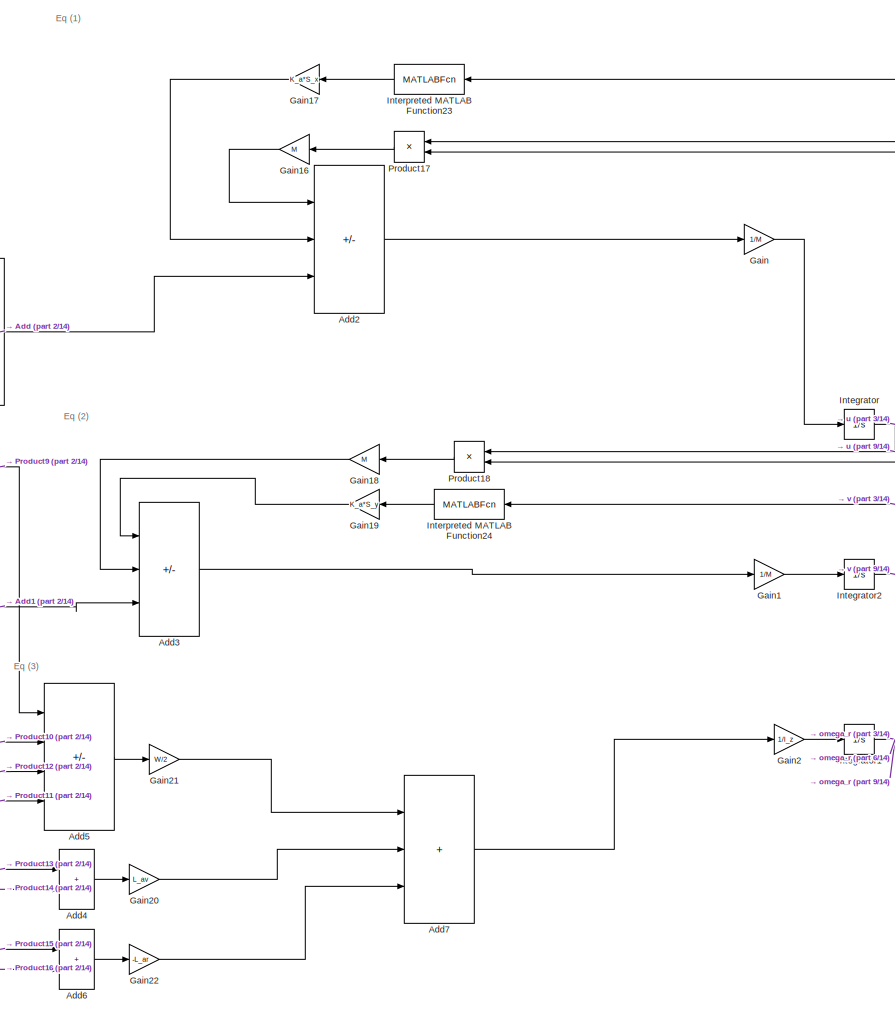
[diagram: root canvas - part 1/14, top center region]
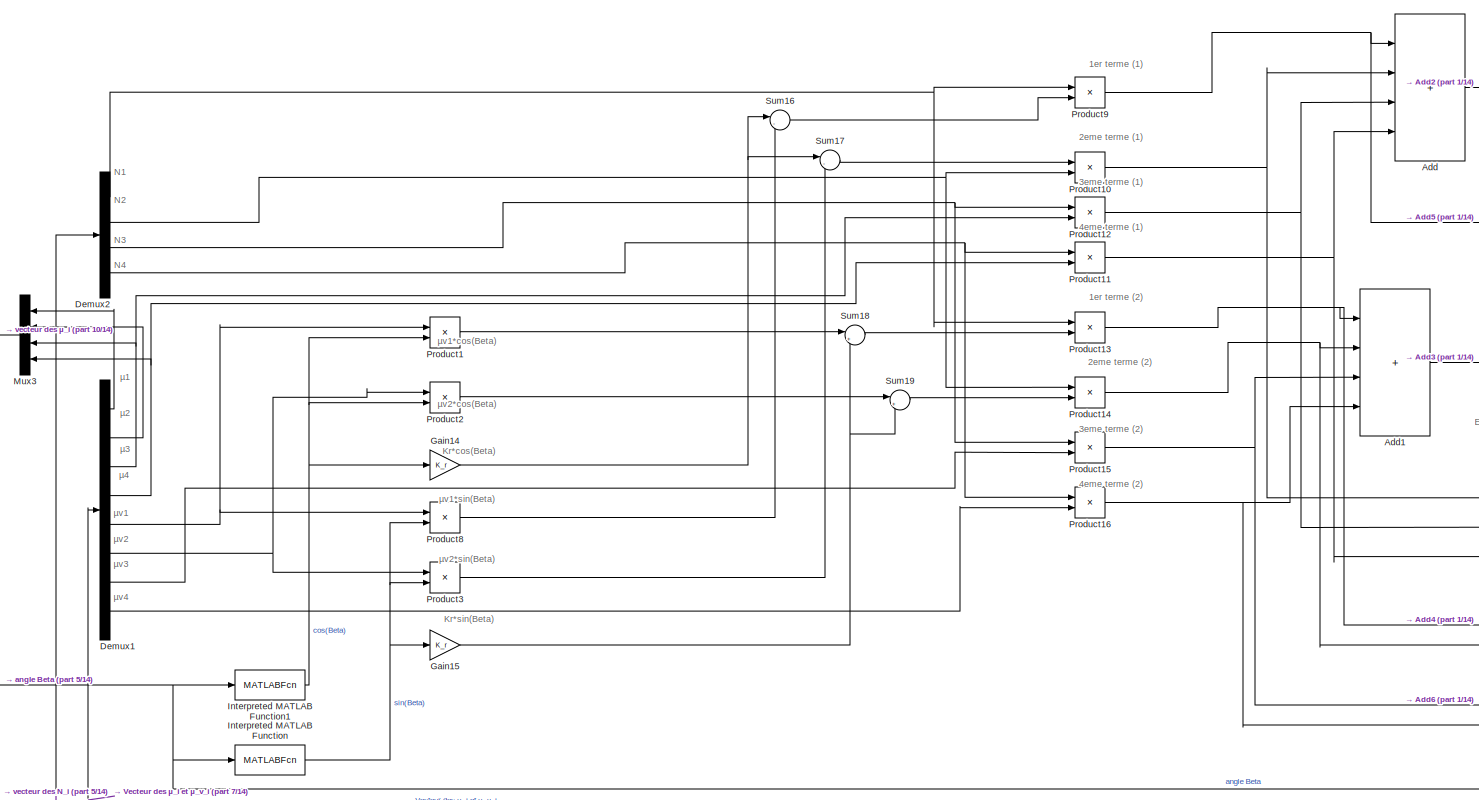
[diagram: root canvas - part 2/14, top left region]
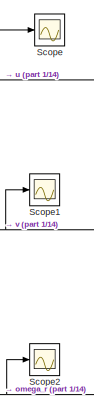
[diagram: root canvas - part 3/14, top right region]
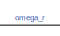
[diagram: root canvas - part 4/14, top right region]
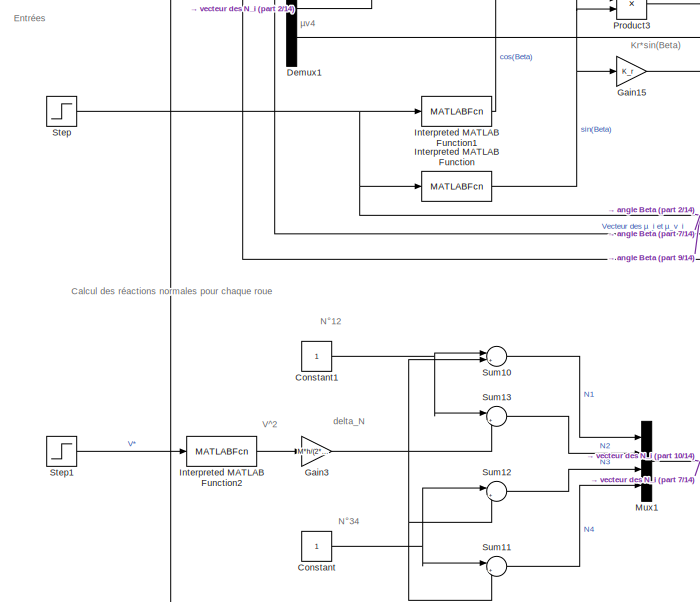
[diagram: root canvas - part 5/14, middle left region]
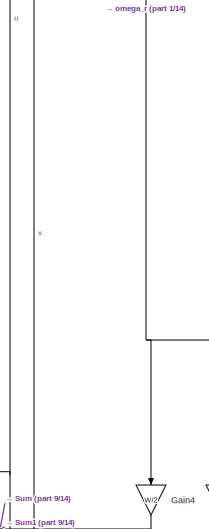
[diagram: root canvas - part 6/14, middle right region]
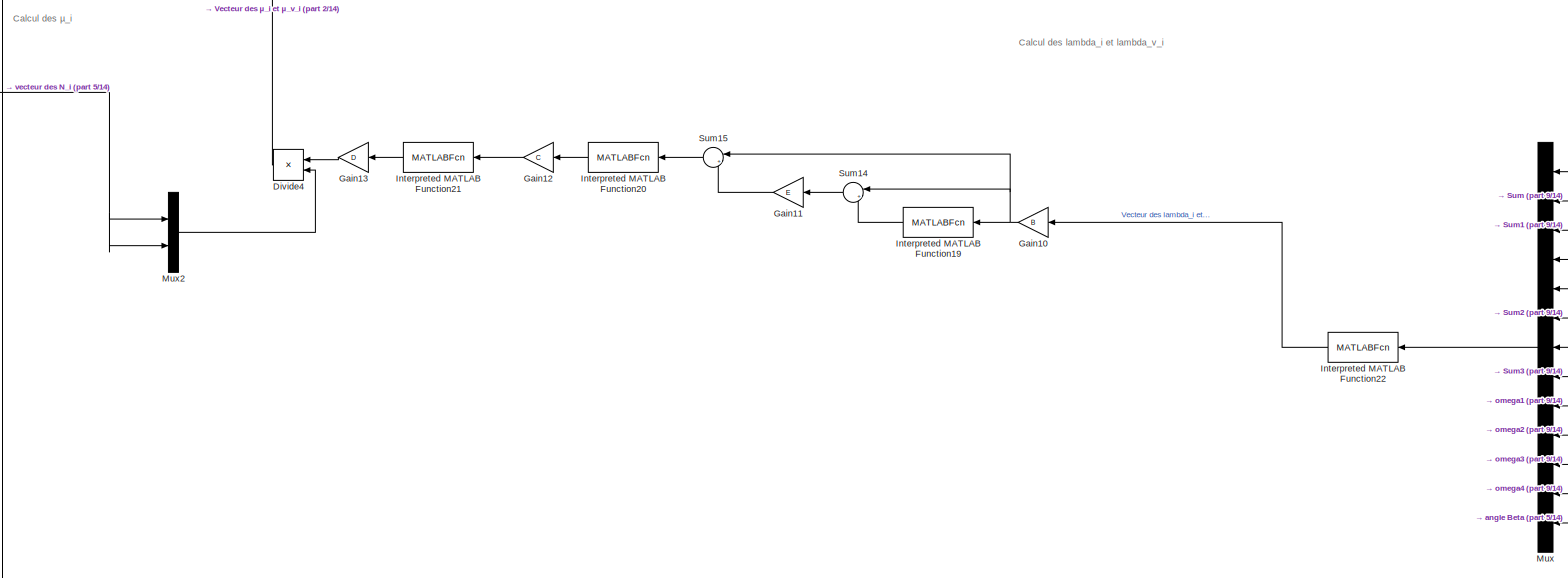
[diagram: root canvas - part 7/14, middle left region]
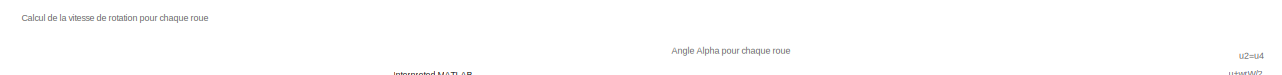
[diagram: root canvas - part 8/14, middle right region]
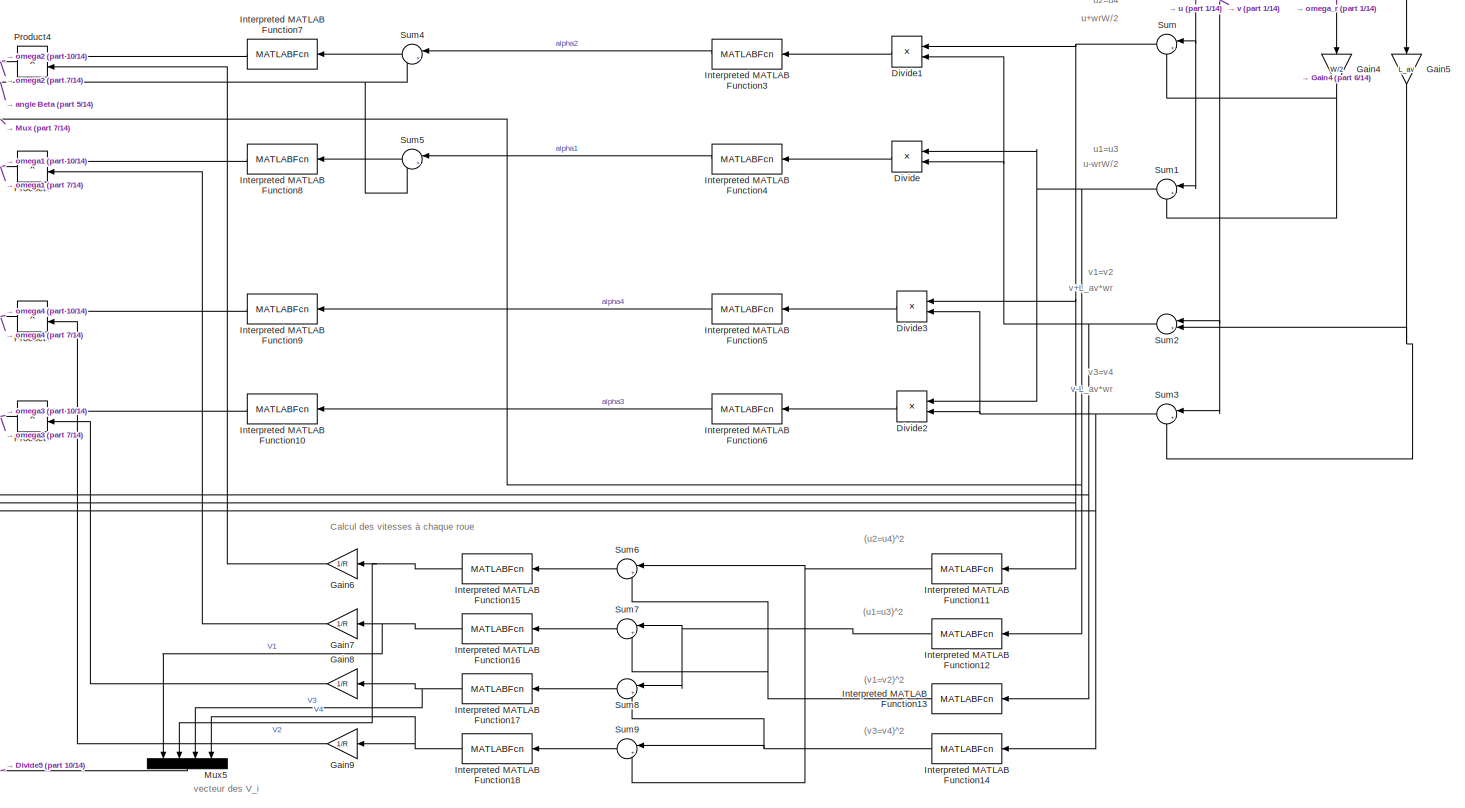
[diagram: root canvas - part 9/14, middle right region]
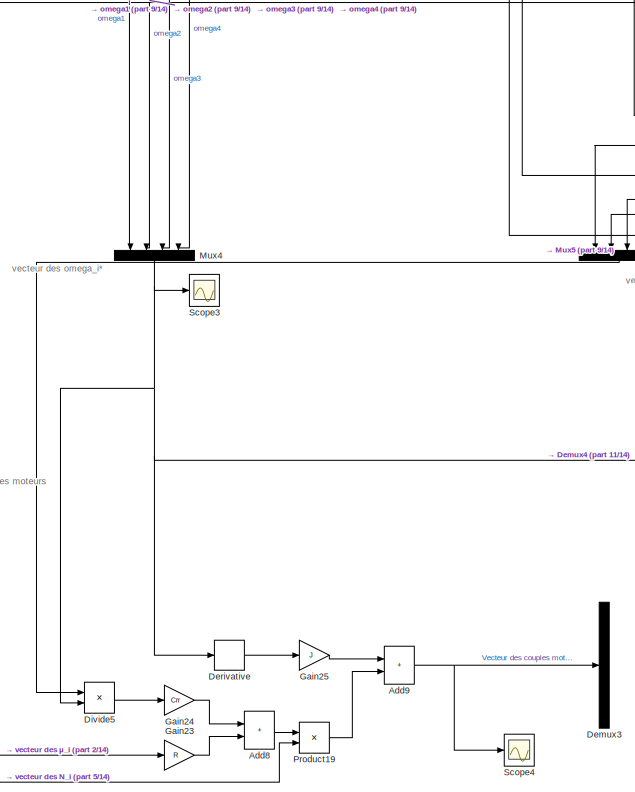
[diagram: root canvas - part 10/14, bottom center region]
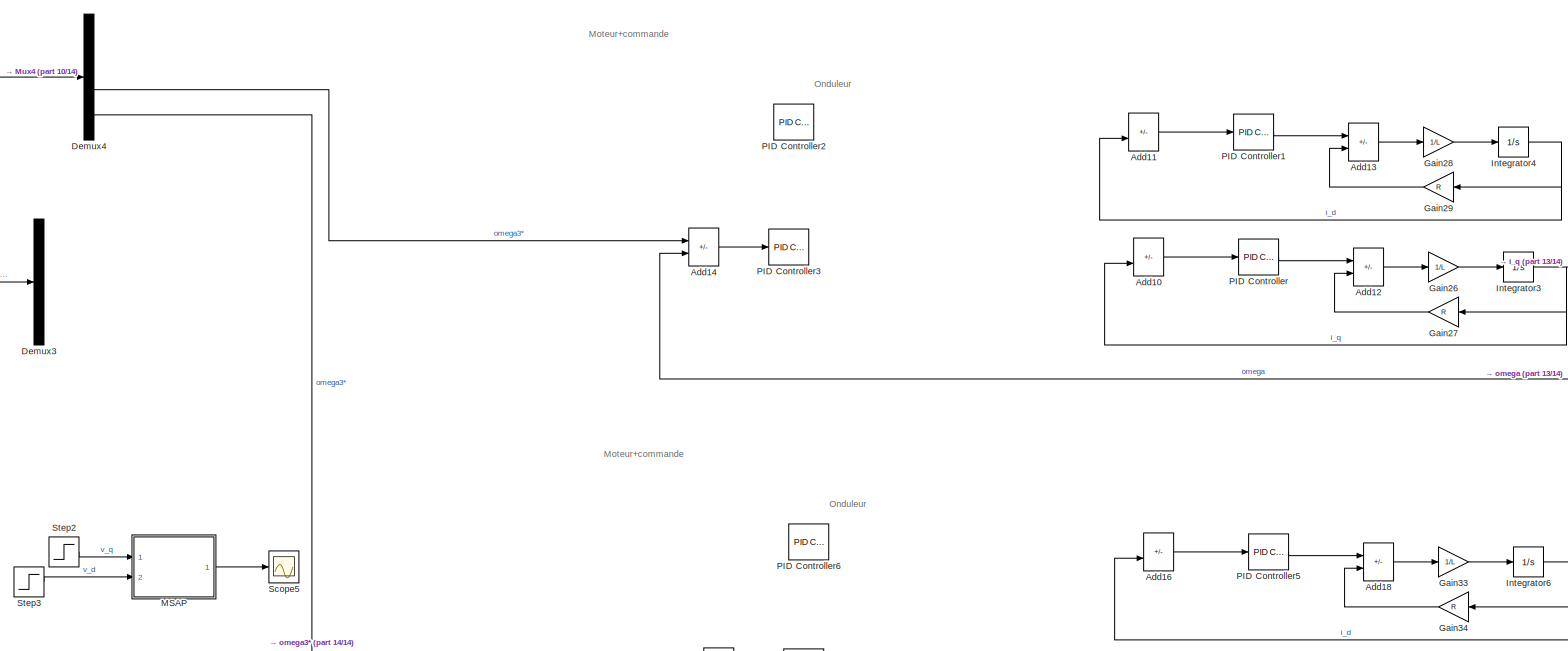
[diagram: root canvas - part 11/14, bottom right region]
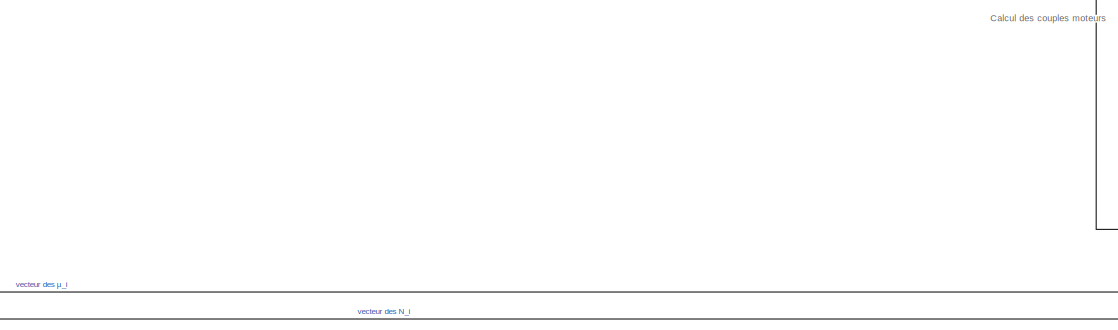
[diagram: root canvas - part 12/14, bottom center region]
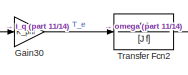
[diagram: root canvas - part 13/14, bottom right region]
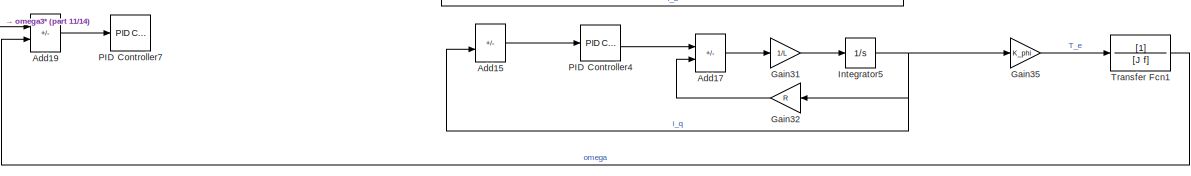
[diagram: root canvas - part 14/14, bottom right region]
MODEL slx_7fe973d7d760
KIND model
CONFIG AbsTol = auto
CONFIG EnableMultiTasking = off
CONFIG FixedStep = 0.001
CONFIG MaxStep = auto
CONFIG MinStep = auto
CONFIG RelTol = 1e-3
CONFIG SampleTimeConstraint = Unconstrained
CONFIG SolverName = FixedStepAuto
CONFIG StartTime = 0.0
CONFIG StopTime = 1.5
BLOCK [Sum] Add
  IconShape = rectangular
  Inputs = ++++
  Ports = [4, 1]
BLOCK [Sum] Add1
  IconShape = rectangular
  Inputs = ++++
  Ports = [4, 1]
BLOCK [Sum] Add10
  IconShape = rectangular
  Inputs = +-
  Ports = [2, 1]
BLOCK [Sum] Add11
  IconShape = rectangular
  Inputs = +-
  Ports = [2, 1]
BLOCK [Sum] Add12
  IconShape = rectangular
  Inputs = +-
  Ports = [2, 1]
BLOCK [Sum] Add13
  IconShape = rectangular
  Inputs = +-
  Ports = [2, 1]
BLOCK [Sum] Add14
  IconShape = rectangular
  Inputs = +-
  Ports = [2, 1]
BLOCK [Sum] Add15
  IconShape = rectangular
  Inputs = +-
  Ports = [2, 1]
BLOCK [Sum] Add16
  IconShape = rectangular
  Inputs = +-
  Ports = [2, 1]
BLOCK [Sum] Add17
  IconShape = rectangular
  Inputs = +-
  Ports = [2, 1]
BLOCK [Sum] Add18
  IconShape = rectangular
  Inputs = +-
  Ports = [2, 1]
BLOCK [Sum] Add19
  IconShape = rectangular
  Inputs = +-
  Ports = [2, 1]
BLOCK [Sum] Add2
  IconShape = rectangular
  Inputs = +-+
  Ports = [3, 1]
BLOCK [Sum] Add3
  IconShape = rectangular
  Inputs = --+
  Ports = [3, 1]
BLOCK [Sum] Add4
  IconShape = rectangular
  Ports = [2, 1]
BLOCK [Sum] Add5
  IconShape = rectangular
  Inputs = -+-+
  Ports = [4, 1]
BLOCK [Sum] Add6
  IconShape = rectangular
  Ports = [2, 1]
BLOCK [Sum] Add7
  IconShape = rectangular
  Inputs = +++
  Ports = [3, 1]
BLOCK [Sum] Add8
  IconShape = rectangular
  Ports = [2, 1]
BLOCK [Sum] Add9
  IconShape = rectangular
  Ports = [2, 1]
BLOCK [Constant] Constant
BLOCK [Constant] Constant1
BLOCK [Demux] Demux1
  Outputs = 8
  Ports = [1, 8]
BLOCK [Demux] Demux2
  Ports = [1, 4]
BLOCK [Demux] Demux3
  Ports = [1, 4]
BLOCK [Demux] Demux4
  Ports = [1, 4]
BLOCK [Derivative] Derivative
BLOCK [Product] Divide
  Inputs = */
  NameLocation = top
  Ports = [2, 1]
BLOCK [Product] Divide1
  Inputs = */
  NameLocation = top
  Ports = [2, 1]
BLOCK [Product] Divide2
  Inputs = */
  NameLocation = top
  Ports = [2, 1]
BLOCK [Product] Divide3
  Inputs = */
  NameLocation = top
  Ports = [2, 1]
BLOCK [Product] Divide4
  Inputs = */
  NameLocation = top
  Ports = [2, 1]
BLOCK [Product] Divide5
  Inputs = */
  Ports = [2, 1]
BLOCK [Gain] Gain
  Gain = 1/M
BLOCK [Gain] Gain1
  Gain = 1/M
BLOCK [Gain] Gain10
  Gain = B
  NameLocation = top
BLOCK [Gain] Gain11
  Gain = E
  NameLocation = top
BLOCK [Gain] Gain12
  Gain = C
  NameLocation = top
BLOCK [Gain] Gain13
  Gain = D
  NameLocation = top
BLOCK [Gain] Gain14
  Gain = K_r
BLOCK [Gain] Gain15
  Gain = K_r
BLOCK [Gain] Gain16
  Gain = M
  NameLocation = top
BLOCK [Gain] Gain17
  Gain = K_a*S_x
  NameLocation = top
BLOCK [Gain] Gain18
  Gain = M
  NameLocation = top
BLOCK [Gain] Gain19
  Gain = K_a*S_y
  NameLocation = top
BLOCK [Gain] Gain2
  Gain = 1/I_z
BLOCK [Gain] Gain20
  Gain = L_av
BLOCK [Gain] Gain21
  Gain = W/2
BLOCK [Gain] Gain22
  Gain = -L_ar
BLOCK [Gain] Gain23
  Gain = R
BLOCK [Gain] Gain24
  Gain = Crr
BLOCK [Gain] Gain25
  Gain = J
BLOCK [Gain] Gain26
  Gain = 1/L
BLOCK [Gain] Gain27
  Gain = R
  NameLocation = top
BLOCK [Gain] Gain28
  Gain = 1/L
BLOCK [Gain] Gain29
  Gain = R
  NameLocation = top
BLOCK [Gain] Gain3
  Gain = M*h/(2*R*W)
BLOCK [Gain] Gain30
  Gain = K_phi
BLOCK [Gain] Gain31
  Gain = 1/L
BLOCK [Gain] Gain32
  Gain = R
  NameLocation = top
BLOCK [Gain] Gain33
  Gain = 1/L
BLOCK [Gain] Gain34
  Gain = R
  NameLocation = top
BLOCK [Gain] Gain35
  Gain = K_phi
BLOCK [Gain] Gain4
  Gain = W/2
  NameLocation = left
BLOCK [Gain] Gain5
  Gain = L_av
  NameLocation = left
BLOCK [Gain] Gain6
  Gain = 1/R
  NameLocation = top
BLOCK [Gain] Gain7
  Gain = 1/R
  NameLocation = top
BLOCK [Gain] Gain8
  Gain = 1/R
  NameLocation = top
BLOCK [Gain] Gain9
  Gain = 1/R
  NameLocation = top
BLOCK [Integrator] Integrator
  InitialCondition = 0.001
  Ports = [1, 1]
BLOCK [Integrator] Integrator1
  InitialCondition = 0.001
  Ports = [1, 1]
BLOCK [Integrator] Integrator2
  InitialCondition = 0.001
  Ports = [1, 1]
BLOCK [Integrator] Integrator3
  Ports = [1, 1]
BLOCK [Integrator] Integrator4
  Ports = [1, 1]
BLOCK [Integrator] Integrator5
  Ports = [1, 1]
BLOCK [Integrator] Integrator6
  Ports = [1, 1]
BLOCK [MATLABFcn] Interpreted MATLAB Function
  Ports = [1, 1]
BLOCK [MATLABFcn] Interpreted MATLAB Function1
  MATLABFcn = cos
  Ports = [1, 1]
BLOCK [MATLABFcn] Interpreted MATLAB Function10
  MATLABFcn = cos
  NameLocation = top
  Ports = [1, 1]
BLOCK [MATLABFcn] Interpreted MATLAB Function11
  MATLABFcn = u^2
  NameLocation = top
  Ports = [1, 1]
BLOCK [MATLABFcn] Interpreted MATLAB Function12
  MATLABFcn = u^2
  NameLocation = top
  Ports = [1, 1]
BLOCK [MATLABFcn] Interpreted MATLAB Function13
  MATLABFcn = u^2
  NameLocation = top
  Ports = [1, 1]
BLOCK [MATLABFcn] Interpreted MATLAB Function14
  MATLABFcn = u^2
  NameLocation = top
  Ports = [1, 1]
BLOCK [MATLABFcn] Interpreted MATLAB Function15
  MATLABFcn = u^(1/2)
  NameLocation = top
  Ports = [1, 1]
BLOCK [MATLABFcn] Interpreted MATLAB Function16
  MATLABFcn = u^(1/2)
  NameLocation = top
  Ports = [1, 1]
BLOCK [MATLABFcn] Interpreted MATLAB Function17
  MATLABFcn = u^(1/2)
  NameLocation = top
  Ports = [1, 1]
BLOCK [MATLABFcn] Interpreted MATLAB Function18
  MATLABFcn = u^(1/2)
  NameLocation = top
  Ports = [1, 1]
BLOCK [MATLABFcn] Interpreted MATLAB Function19
  MATLABFcn = atan
  NameLocation = top
  Ports = [1, 1]
BLOCK [MATLABFcn] Interpreted MATLAB Function2
  MATLABFcn = u^2
  Ports = [1, 1]
BLOCK [MATLABFcn] Interpreted MATLAB Function20
  MATLABFcn = atan
  NameLocation = top
  Ports = [1, 1]
BLOCK [MATLABFcn] Interpreted MATLAB Function21
  MATLABFcn = cos
  NameLocation = top
  Ports = [1, 1]
BLOCK [MATLABFcn] Interpreted MATLAB Function22
  MATLABFcn = calcul_lambda
  NameLocation = top
  Ports = [1, 1]
BLOCK [MATLABFcn] Interpreted MATLAB Function23
  MATLABFcn = u^2
  NameLocation = top
  Ports = [1, 1]
BLOCK [MATLABFcn] Interpreted MATLAB Function24
  MATLABFcn = u^2
  NameLocation = top
  Ports = [1, 1]
BLOCK [MATLABFcn] Interpreted MATLAB Function3
  MATLABFcn = atan
  NameLocation = top
  Ports = [1, 1]
BLOCK [MATLABFcn] Interpreted MATLAB Function4
  MATLABFcn = atan(u)
  NameLocation = top
  Ports = [1, 1]
BLOCK [MATLABFcn] Interpreted MATLAB Function5
  MATLABFcn = atan
  NameLocation = top
  Ports = [1, 1]
BLOCK [MATLABFcn] Interpreted MATLAB Function6
  MATLABFcn = atan
  NameLocation = top
  Ports = [1, 1]
BLOCK [MATLABFcn] Interpreted MATLAB Function7
  MATLABFcn = cos
  NameLocation = top
  Ports = [1, 1]
BLOCK [MATLABFcn] Interpreted MATLAB Function8
  MATLABFcn = cos
  NameLocation = top
  Ports = [1, 1]
BLOCK [MATLABFcn] Interpreted MATLAB Function9
  MATLABFcn = cos
  NameLocation = top
  Ports = [1, 1]
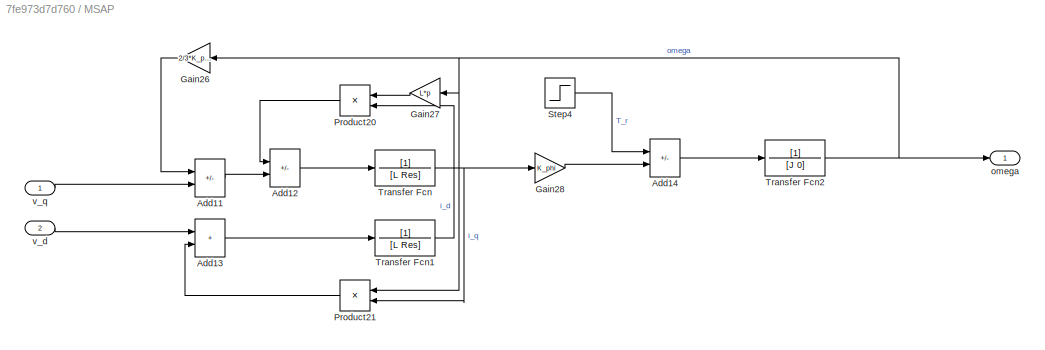
BLOCK [SubSystem] MSAP
  Ports = [2, 1]
  RequestExecContextInheritance = off
BLOCK [Sum] MSAP/Add11
  IconShape = rectangular
  Inputs = -+
  Ports = [2, 1]
BLOCK [Sum] MSAP/Add12
  IconShape = rectangular
  Inputs = -+
  Ports = [2, 1]
BLOCK [Sum] MSAP/Add13
  IconShape = rectangular
  Ports = [2, 1]
BLOCK [Sum] MSAP/Add14
  IconShape = rectangular
  Inputs = -+
  Ports = [2, 1]
BLOCK [Gain] MSAP/Gain26
  Gain = 2/3*K_phi
  NameLocation = top
BLOCK [Gain] MSAP/Gain27
  Gain = L*p
  NameLocation = top
BLOCK [Gain] MSAP/Gain28
  Gain = K_phi
BLOCK [Product] MSAP/Product20
  NameLocation = top
  Ports = [2, 1]
BLOCK [Product] MSAP/Product21
  NameLocation = top
  Ports = [2, 1]
BLOCK [Step] MSAP/Step4
  SampleTime = 0
  Time = 0
BLOCK [TransferFcn] MSAP/Transfer Fcn
  Denominator = [L Res]
BLOCK [TransferFcn] MSAP/Transfer Fcn1
  Denominator = [L Res]
BLOCK [TransferFcn] MSAP/Transfer Fcn2
  Denominator = [J 0]
BLOCK [Outport] MSAP/omega
BLOCK [Inport] MSAP/v_d
  Port = 2
BLOCK [Inport] MSAP/v_q
BLOCK [Mux] Mux
  DisplayOption = bar
  Inputs = 13
  NameLocation = top
  Ports = [13, 1]
BLOCK [Mux] Mux1
  DisplayOption = bar
  Ports = [4, 1]
BLOCK [Mux] Mux2
  DisplayOption = bar
  Inputs = 2
  Ports = [2, 1]
BLOCK [Mux] Mux3
  DisplayOption = bar
  NameLocation = top
  Ports = [4, 1]
BLOCK [Mux] Mux4
  DisplayOption = bar
  NameLocation = left
  Ports = [4, 1]
BLOCK [Mux] Mux5
  DisplayOption = bar
  NameLocation = left
  Ports = [4, 1]
BLOCK [Reference] PID Controller  REF=slpidlib/PID Controller
  Ports = [1, 1]
  SourceBlock = slpidlib/PID Controller
  SourceProductBaseCode = SL
  SourceType = PID 1dof
BLOCK [Reference] PID Controller1  REF=slpidlib/PID Controller
  Ports = [1, 1]
  SourceBlock = slpidlib/PID Controller
  SourceProductBaseCode = SL
  SourceType = PID 1dof
BLOCK [Reference] PID Controller2  REF=slpidlib/PID Controller
  Ports = [1, 1]
  SourceBlock = slpidlib/PID Controller
  SourceProductBaseCode = SL
  SourceType = PID 1dof
BLOCK [Reference] PID Controller3  REF=slpidlib/PID Controller
  Ports = [1, 1]
  SourceBlock = slpidlib/PID Controller
  SourceProductBaseCode = SL
  SourceType = PID 1dof
BLOCK [Reference] PID Controller4  REF=slpidlib/PID Controller
  Ports = [1, 1]
  SourceBlock = slpidlib/PID Controller
  SourceProductBaseCode = SL
  SourceType = PID 1dof
BLOCK [Reference] PID Controller5  REF=slpidlib/PID Controller
  Ports = [1, 1]
  SourceBlock = slpidlib/PID Controller
  SourceProductBaseCode = SL
  SourceType = PID 1dof
BLOCK [Reference] PID Controller6  REF=slpidlib/PID Controller
  Ports = [1, 1]
  SourceBlock = slpidlib/PID Controller
  SourceProductBaseCode = SL
  SourceType = PID 1dof
BLOCK [Reference] PID Controller7  REF=slpidlib/PID Controller
  Ports = [1, 1]
  SourceBlock = slpidlib/PID Controller
  SourceProductBaseCode = SL
  SourceType = PID 1dof
BLOCK [Product] Product1
  Ports = [2, 1]
BLOCK [Product] Product10
  Ports = [2, 1]
BLOCK [Product] Product11
  Ports = [2, 1]
BLOCK [Product] Product12
  Ports = [2, 1]
BLOCK [Product] Product13
  Ports = [2, 1]
BLOCK [Product] Product14
  Ports = [2, 1]
BLOCK [Product] Product15
  Ports = [2, 1]
BLOCK [Product] Product16
  Ports = [2, 1]
BLOCK [Product] Product17
  NameLocation = top
  Ports = [2, 1]
BLOCK [Product] Product18
  NameLocation = top
  Ports = [2, 1]
BLOCK [Product] Product19
  Ports = [2, 1]
BLOCK [Product] Product2
  Ports = [2, 1]
BLOCK [Product] Product3
  Ports = [2, 1]
BLOCK [Product] Product4
  NameLocation = top
  Ports = [2, 1]
BLOCK [Product] Product5
  NameLocation = top
  Ports = [2, 1]
BLOCK [Product] Product6
  NameLocation = top
  Ports = [2, 1]
BLOCK [Product] Product7
  NameLocation = top
  Ports = [2, 1]
BLOCK [Product] Product8
  Ports = [2, 1]
BLOCK [Product] Product9
  Ports = [2, 1]
BLOCK [Scope] Scope
  Floating = off
  NumInputPorts = 1
  Ports = [1]
  ScopeSpecificationString = Simulink.scopes.TimeScopeBlockCfg('CurrentConfiguration', extmgr.ConfigurationSet(extmgr.Configuration('Core','General UI',true),extmgr.Configuration('Core','Source UI',true),extmgr.Configuration('Sources','WiredSimulink',true),extmgr.Configuration('Visuals','Time Domain',true,'SerializedDisplays',{struct('MinYLimReal','-1.54394','MaxYLimReal','0.17266','YLabelReal','','MinYLimMag','0.00000','MaxY...<+1321ch>
BLOCK [Scope] Scope1
  Floating = off
  NumInputPorts = 1
  Ports = [1]
  ScopeSpecificationString = Simulink.scopes.TimeScopeBlockCfg('CurrentConfiguration', extmgr.ConfigurationSet(extmgr.Configuration('Core','General UI',true),extmgr.Configuration('Core','Source UI',true),extmgr.Configuration('Sources','WiredSimulink',true,'DataLoggingVariableName','ScopeData1'),extmgr.Configuration('Visuals','Time Domain',true,'SerializedDisplays',{struct('MinYLimReal','-0.22671','MaxYLimReal','2.05041','YLab...<+1408ch>
BLOCK [Scope] Scope2
  Floating = off
  NumInputPorts = 1
  Ports = [1]
  ScopeSpecificationString = Simulink.scopes.TimeScopeBlockCfg('CurrentConfiguration', extmgr.ConfigurationSet(extmgr.Configuration('Core','General UI',true),extmgr.Configuration('Core','Source UI',true),extmgr.Configuration('Sources','WiredSimulink',true,'DataLoggingVariableName','ScopeData2'),extmgr.Configuration('Visuals','Time Domain',true,'SerializedDisplays',{struct('MinYLimReal','-0.06857','MaxYLimReal','0.62712','YLab...<+1366ch>
BLOCK [Scope] Scope3
  Floating = off
  NumInputPorts = 1
  Ports = [1]
  ScopeSpecificationString = Simulink.scopes.TimeScopeBlockCfg('CurrentConfiguration', extmgr.ConfigurationSet(extmgr.Configuration('Core','General UI',true),extmgr.Configuration('Core','Source UI',true),extmgr.Configuration('Sources','WiredSimulink',true,'DataLoggingVariableName','ScopeData3'),extmgr.Configuration('Visuals','Time Domain',true,'SerializedDisplays',{struct('MinYLimReal','-0.6278','MaxYLimReal','2.36181','YLabe...<+1527ch>
BLOCK [Scope] Scope4
  Floating = off
  NumInputPorts = 1
  Ports = [1]
  ScopeSpecificationString = Simulink.scopes.TimeScopeBlockCfg('CurrentConfiguration', extmgr.ConfigurationSet(extmgr.Configuration('Core','General UI',true),extmgr.Configuration('Core','Source UI',true),extmgr.Configuration('Sources','WiredSimulink',true,'DataLoggingVariableName','ScopeData1'),extmgr.Configuration('Visuals','Time Domain',true,'SerializedDisplays',{struct('MinYLimReal','0.55559','MaxYLimReal','2.06421','YLabe...<+1623ch>
BLOCK [Scope] Scope5
  Floating = off
  NumInputPorts = 1
  Ports = [1]
  ScopeSpecificationString = Simulink.scopes.TimeScopeBlockCfg('CurrentConfiguration', extmgr.ConfigurationSet(extmgr.Configuration('Core','General UI',true),extmgr.Configuration('Core','Source UI',true),extmgr.Configuration('Sources','WiredSimulink',true,'DataLoggingVariableName','ScopeData2'),extmgr.Configuration('Visuals','Time Domain',true,'SerializedDisplays',{struct('MinYLimReal','0.55559','MaxYLimReal','2.06421','YLabe...<+1623ch>
BLOCK [Step] Step
  After = 0.2
  Before = 0.1
  SampleTime = 0
  Time = 0
BLOCK [Step] Step1
  SampleTime = 0
  Time = 0
BLOCK [Step] Step2
  SampleTime = 0
  Time = 0
BLOCK [Step] Step3
  SampleTime = 0
  Time = 0
BLOCK [Sum] Sum
  Inputs = |++
  NameLocation = top
  Ports = [2, 1]
BLOCK [Sum] Sum1
  Inputs = |+-
  NameLocation = top
  Ports = [2, 1]
BLOCK [Sum] Sum10
  Inputs = |++
  Ports = [2, 1]
BLOCK [Sum] Sum11
  Inputs = |++
  Ports = [2, 1]
BLOCK [Sum] Sum12
  Inputs = |+-
  Ports = [2, 1]
BLOCK [Sum] Sum13
  Inputs = |+-
  Ports = [2, 1]
BLOCK [Sum] Sum14
  Inputs = |+-
  NameLocation = top
  Ports = [2, 1]
BLOCK [Sum] Sum15
  Inputs = |+-
  NameLocation = top
  Ports = [2, 1]
BLOCK [Sum] Sum16
  Inputs = |--
  Ports = [2, 1]
BLOCK [Sum] Sum17
  Inputs = |--
  Ports = [2, 1]
BLOCK [Sum] Sum18
  Inputs = |+-
  Ports = [2, 1]
BLOCK [Sum] Sum19
  Inputs = |+-
  Ports = [2, 1]
BLOCK [Sum] Sum2
  Inputs = |++
  NameLocation = top
  Ports = [2, 1]
BLOCK [Sum] Sum3
  Inputs = |+-
  NameLocation = top
  Ports = [2, 1]
BLOCK [Sum] Sum4
  Inputs = |+-
  NameLocation = top
  Ports = [2, 1]
BLOCK [Sum] Sum5
  Inputs = |+-
  NameLocation = top
  Ports = [2, 1]
BLOCK [Sum] Sum6
  Inputs = |++
  NameLocation = top
  Ports = [2, 1]
BLOCK [Sum] Sum7
  Inputs = |++
  NameLocation = top
  Ports = [2, 1]
BLOCK [Sum] Sum8
  Inputs = |++
  NameLocation = top
  Ports = [2, 1]
BLOCK [Sum] Sum9
  Inputs = |++
  NameLocation = top
  Ports = [2, 1]
BLOCK [TransferFcn] Transfer Fcn1
  Denominator = [J f]
BLOCK [TransferFcn] Transfer Fcn2
  Denominator = [J f]
ANNOTATION (root): (u1=u3)^2
ANNOTATION (root): (u2=u4)^2
ANNOTATION (root): (v1=v2)^2
ANNOTATION (root): (v3=v4)^2
ANNOTATION (root): 1er terme (1)
ANNOTATION (root): 1er terme (2)
ANNOTATION (root): 2eme terme (1)
ANNOTATION (root): 2eme terme (2)
ANNOTATION (root): 3eme terme (1)
ANNOTATION (root): 3eme terme (2)
ANNOTATION (root): 4eme terme (1)
ANNOTATION (root): 4eme terme (2)
ANNOTATION (root): Angle Alpha pour chaque roue
ANNOTATION (root): Calcul de la vitesse de rotation pour chaque roue
ANNOTATION (root): Calcul des couples moteurs
ANNOTATION (root): Calcul des lambda_i et lambda_v_i
ANNOTATION (root): Calcul des réactions normales pour chaque roue
ANNOTATION (root): Calcul des vitesses à chaque roue
ANNOTATION (root): Calcul des µ_i
ANNOTATION (root): Entrées
ANNOTATION (root): Eq (1)
ANNOTATION (root): Eq (2)
ANNOTATION (root): Eq (3)
ANNOTATION (root): Kr*cos(Beta)
ANNOTATION (root): Kr*sin(Beta)
ANNOTATION (root): Moteur+commande
ANNOTATION (root): N1
ANNOTATION (root): N2
ANNOTATION (root): N3
ANNOTATION (root): N4
ANNOTATION (root): N°12
ANNOTATION (root): N°34
ANNOTATION (root): Onduleur
ANNOTATION (root): V^2
ANNOTATION (root): delta_N
ANNOTATION (root): u+wrW/2
ANNOTATION (root): u-wrW/2
ANNOTATION (root): u1=u3
ANNOTATION (root): u2=u4
ANNOTATION (root): v+L_av*wr
ANNOTATION (root): v-L_av*wr
ANNOTATION (root): v1=v2
ANNOTATION (root): v3=v4
ANNOTATION (root): vecteur des V_i
ANNOTATION (root): vecteur des omega_i*
ANNOTATION (root): µ1
ANNOTATION (root): µ2
ANNOTATION (root): µ3
ANNOTATION (root): µ4
ANNOTATION (root): µv1
ANNOTATION (root): µv1*cos(Beta)
ANNOTATION (root): µv1*sin(Beta)
ANNOTATION (root): µv2
ANNOTATION (root): µv2*cos(Beta)
ANNOTATION (root): µv2*sin(Beta)
ANNOTATION (root): µv3
ANNOTATION (root): µv4
LINE Add10:1 -> PID Controller:1
LINE Add11:1 -> PID Controller1:1
LINE Add12:1 -> Gain26:1
LINE Add13:1 -> Gain28:1
LINE Add14:1 -> PID Controller3:1
LINE Add15:1 -> PID Controller4:1
LINE Add16:1 -> PID Controller5:1
LINE Add17:1 -> Gain31:1
LINE Add18:1 -> Gain33:1
LINE Add19:1 -> PID Controller7:1
LINE Add1:1 -> Add3:3
LINE Add2:1 -> Gain:1
LINE Add3:1 -> Gain1:1
LINE Add4:1 -> Gain20:1
LINE Add5:1 -> Gain21:1
LINE Add6:1 -> Gain22:1
LINE Add7:1 -> Gain2:1
LINE Add8:1 -> Product19:1
NET Add9:1 -> Demux3:1, Scope4:1
LINE Add:1 -> Add2:3
NET Constant1:1 -> Sum10:1, Sum13:1
NET Constant:1 -> Sum11:1, Sum12:1
LINE Demux1:1 -> Mux3:1
LINE Demux1:2 -> Mux3:2
NET Demux1:3 -> Mux3:3, Product12:2
NET Demux1:4 -> Mux3:4, Product11:2
NET Demux1:5 -> Product1:1, Product8:1
NET Demux1:6 -> Product2:1, Product3:1
LINE Demux1:7 -> Product15:2
LINE Demux1:8 -> Product16:2
NET Demux2:1 -> Product13:1, Product9:1
NET Demux2:2 -> Product10:2, Product14:1
NET Demux2:3 -> Product12:1, Product15:1
NET Demux2:4 -> Product11:1, Product16:1
LINE Demux4:3 -> Add14:1
LINE Demux4:4 -> Add19:1
LINE Derivative:1 -> Gain25:1
LINE Divide1:1 -> Interpreted MATLAB Function3:1
LINE Divide2:1 -> Interpreted MATLAB Function6:1
LINE Divide3:1 -> Interpreted MATLAB Function5:1
LINE Divide4:1 -> Demux1:1
LINE Divide5:1 -> Gain24:1
LINE Divide:1 -> Interpreted MATLAB Function4:1
NET Gain10:1 -> Interpreted MATLAB Function19:1, Sum14:1, Sum15:1
LINE Gain11:1 -> Sum15:2
LINE Gain12:1 -> Interpreted MATLAB Function21:1
LINE Gain13:1 -> Divide4:1
NET Gain14:1 -> Sum16:1, Sum17:1
NET Gain15:1 -> Sum18:2, Sum19:2
LINE Gain16:1 -> Add2:1
LINE Gain17:1 -> Add2:2
LINE Gain18:1 -> Add3:2
LINE Gain19:1 -> Add3:1
LINE Gain1:1 -> Integrator2:1
LINE Gain20:1 -> Add7:2
LINE Gain21:1 -> Add7:1
LINE Gain22:1 -> Add7:3
LINE Gain23:1 -> Add8:2
LINE Gain24:1 -> Add8:1
LINE Gain25:1 -> Add9:1
LINE Gain26:1 -> Integrator3:1
LINE Gain27:1 -> Add12:2
LINE Gain28:1 -> Integrator4:1
LINE Gain29:1 -> Add13:2
LINE Gain2:1 -> Integrator1:1
LINE Gain30:1 -> Transfer Fcn2:1
LINE Gain31:1 -> Integrator5:1
LINE Gain32:1 -> Add17:2
LINE Gain33:1 -> Integrator6:1
LINE Gain34:1 -> Add18:2
LINE Gain35:1 -> Transfer Fcn1:1
NET Gain3:1 -> Sum10:2, Sum11:2, Sum12:2, Sum13:2
NET Gain4:1 -> Sum1:2, Sum:2
NET Gain5:1 -> Sum2:2, Sum3:2
LINE Gain6:1 -> Product4:2
LINE Gain7:1 -> Product5:2
LINE Gain8:1 -> Product7:2
LINE Gain9:1 -> Product6:2
LINE Gain:1 -> Integrator:1
NET Integrator1:1 -> Gain4:1, Gain5:1, Product17:2, Product18:2, Scope2:1
NET Integrator2:1 -> Interpreted MATLAB Function24:1, Product17:1, Scope1:1, Sum2:1, Sum3:1
NET Integrator3:1 -> Add10:2, Gain27:1, Gain30:1
NET Integrator4:1 -> Add11:2, Gain29:1
NET Integrator5:1 -> Add15:2, Gain32:1, Gain35:1
NET Integrator6:1 -> Add16:2, Gain34:1
NET Integrator:1 -> Interpreted MATLAB Function23:1, Product18:1, Scope:1, Sum1:1, Sum:1
LINE Interpreted MATLAB Function10:1 -> Product7:1
NET Interpreted MATLAB Function11:1 -> Sum6:1, Sum9:2
NET Interpreted MATLAB Function12:1 -> Sum7:1, Sum8:1
NET Interpreted MATLAB Function13:1 -> Sum6:2, Sum7:2
NET Interpreted MATLAB Function14:1 -> Sum8:2, Sum9:1
NET Interpreted MATLAB Function15:1 -> Gain6:1, Mux5:2
NET Interpreted MATLAB Function16:1 -> Gain7:1, Mux5:1
NET Interpreted MATLAB Function17:1 -> Gain8:1, Mux5:3
NET Interpreted MATLAB Function18:1 -> Gain9:1, Mux5:4
LINE Interpreted MATLAB Function19:1 -> Sum14:2
NET Interpreted MATLAB Function1:1 -> Gain14:1, Product1:2, Product2:2
LINE Interpreted MATLAB Function20:1 -> Gain12:1
LINE Interpreted MATLAB Function21:1 -> Gain13:1
LINE Interpreted MATLAB Function22:1 -> Gain10:1
LINE Interpreted MATLAB Function23:1 -> Gain17:1
LINE Interpreted MATLAB Function24:1 -> Gain19:1
LINE Interpreted MATLAB Function2:1 -> Gain3:1
LINE Interpreted MATLAB Function3:1 -> Sum4:1
LINE Interpreted MATLAB Function4:1 -> Sum5:1
LINE Interpreted MATLAB Function5:1 -> Interpreted MATLAB Function9:1
LINE Interpreted MATLAB Function6:1 -> Interpreted MATLAB Function10:1
LINE Interpreted MATLAB Function7:1 -> Product4:1
LINE Interpreted MATLAB Function8:1 -> Product5:1
LINE Interpreted MATLAB Function9:1 -> Product6:1
NET Interpreted MATLAB Function:1 -> Gain15:1, Product3:2, Product8:2
LINE MSAP/Add11:1 -> MSAP/Add12:2
LINE MSAP/Add12:1 -> MSAP/Transfer Fcn:1
LINE MSAP/Add13:1 -> MSAP/Transfer Fcn1:1
LINE MSAP/Add14:1 -> MSAP/Transfer Fcn2:1
LINE MSAP/Gain26:1 -> MSAP/Add11:1
LINE MSAP/Gain27:1 -> MSAP/Product20:1
LINE MSAP/Gain28:1 -> MSAP/Add14:2
LINE MSAP/Product20:1 -> MSAP/Add12:1
LINE MSAP/Product21:1 -> MSAP/Add13:2
LINE MSAP/Step4:1 -> MSAP/Add14:1
LINE MSAP/Transfer Fcn1:1 -> MSAP/Product20:2
NET MSAP/Transfer Fcn2:1 -> MSAP/Gain26:1, MSAP/Gain27:1, MSAP/Product21:1, MSAP/omega:1
NET MSAP/Transfer Fcn:1 -> MSAP/Gain28:1, MSAP/Product21:2
LINE MSAP/v_d:1 -> MSAP/Add13:1
LINE MSAP/v_q:1 -> MSAP/Add11:2
LINE MSAP:1 -> Scope5:1
NET Mux1:1 -> Demux2:1, Mux2:1, Mux2:2, Product19:2
LINE Mux2:1 -> Divide4:2
LINE Mux3:1 -> Gain23:1
NET Mux4:1 -> Demux4:1, Derivative:1, Divide5:2, Scope3:1
LINE Mux5:1 -> Divide5:1
LINE Mux:1 -> Interpreted MATLAB Function22:1
LINE PID Controller1:1 -> Add13:1
LINE PID Controller4:1 -> Add17:1
LINE PID Controller5:1 -> Add18:1
LINE PID Controller:1 -> Add12:1
NET Product10:1 -> Add5:2, Add:2
NET Product11:1 -> Add5:4, Add:4
NET Product12:1 -> Add5:3, Add:3
NET Product13:1 -> Add1:1, Add4:1
NET Product14:1 -> Add1:2, Add4:2
NET Product15:1 -> Add1:3, Add6:1
NET Product16:1 -> Add1:4, Add6:2
LINE Product17:1 -> Gain16:1
LINE Product18:1 -> Gain18:1
LINE Product19:1 -> Add9:2
LINE Product1:1 -> Sum18:1
LINE Product2:1 -> Sum19:1
LINE Product3:1 -> Sum17:2
NET Product4:1 -> Mux4:2, Mux:10
NET Product5:1 -> Mux4:1, Mux:9
NET Product6:1 -> Mux4:4, Mux:12
NET Product7:1 -> Mux4:3, Mux:11
LINE Product8:1 -> Sum16:2
NET Product9:1 -> Add5:1, Add:1
LINE Step1:1 -> Interpreted MATLAB Function2:1
LINE Step2:1 -> MSAP:1
LINE Step3:1 -> MSAP:2
NET Step:1 -> Interpreted MATLAB Function1:1, Interpreted MATLAB Function:1, Mux:13, Sum4:2, Sum5:2
LINE Sum10:1 -> Mux1:1
LINE Sum11:1 -> Mux1:4
LINE Sum12:1 -> Mux1:3
LINE Sum13:1 -> Mux1:2
LINE Sum14:1 -> Gain11:1
LINE Sum15:1 -> Interpreted MATLAB Function20:1
LINE Sum16:1 -> Product9:2
LINE Sum17:1 -> Product10:1
LINE Sum18:1 -> Product13:2
LINE Sum19:1 -> Product14:2
NET Sum1:1 -> Divide2:1, Divide:1, Interpreted MATLAB Function12:1, Mux:1, Mux:3
NET Sum2:1 -> Divide1:2, Divide:2, Interpreted MATLAB Function13:1, Mux:5, Mux:6
NET Sum3:1 -> Divide2:2, Divide3:2, Interpreted MATLAB Function14:1, Mux:7, Mux:8
LINE Sum4:1 -> Interpreted MATLAB Function7:1
LINE Sum5:1 -> Interpreted MATLAB Function8:1
LINE Sum6:1 -> Interpreted MATLAB Function15:1
LINE Sum7:1 -> Interpreted MATLAB Function16:1
LINE Sum8:1 -> Interpreted MATLAB Function17:1
LINE Sum9:1 -> Interpreted MATLAB Function18:1
NET Sum:1 -> Divide1:1, Divide3:1, Interpreted MATLAB Function11:1, Mux:2, Mux:4
LINE Transfer Fcn1:1 -> Add19:2
LINE Transfer Fcn2:1 -> Add14:2
note: NET lines group one-source signal fan-out (src -> all destinations, sorted); 1:1 wires keep LINE
